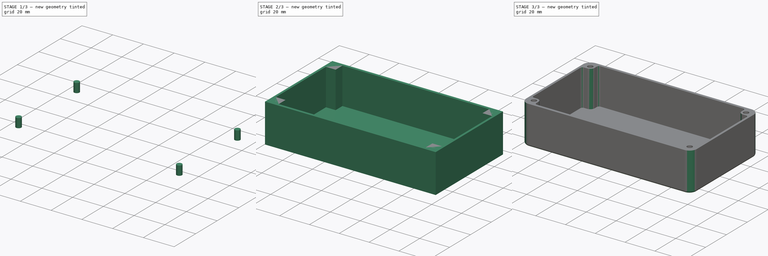
[diagram: build sequence overview — one tinted view per stage of 3, left to right]
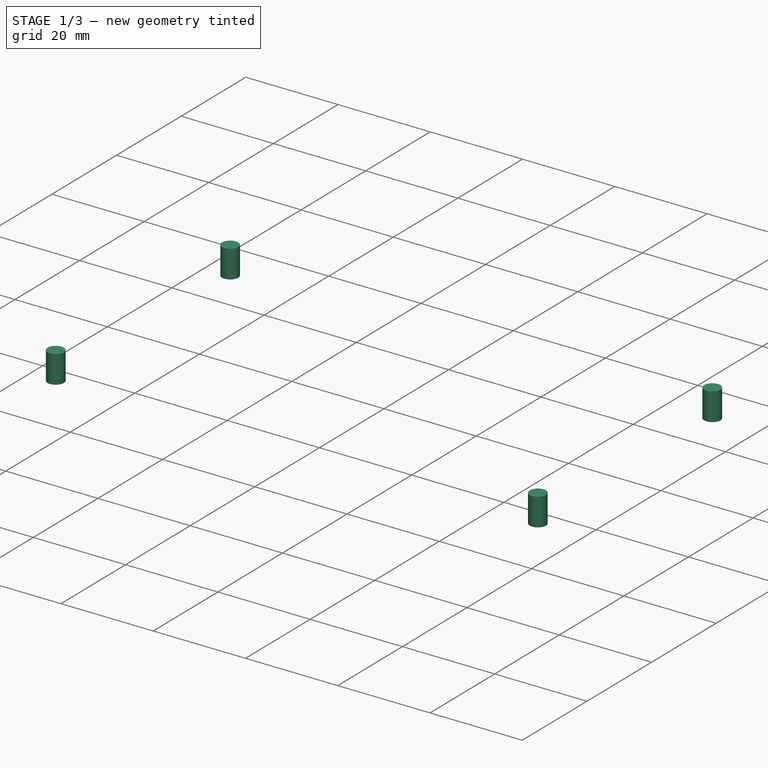
[diagram: stage 1 of 3 — iso view after this stage's code; geometry added in this stage tinted green]
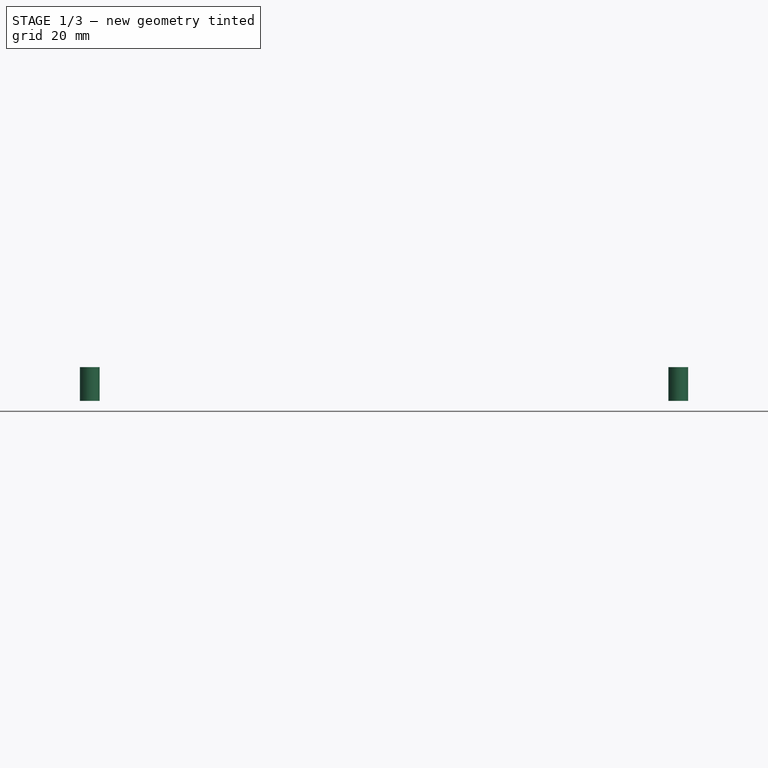
[diagram: stage 1 of 3 — front view after this stage's code; geometry added in this stage tinted green]
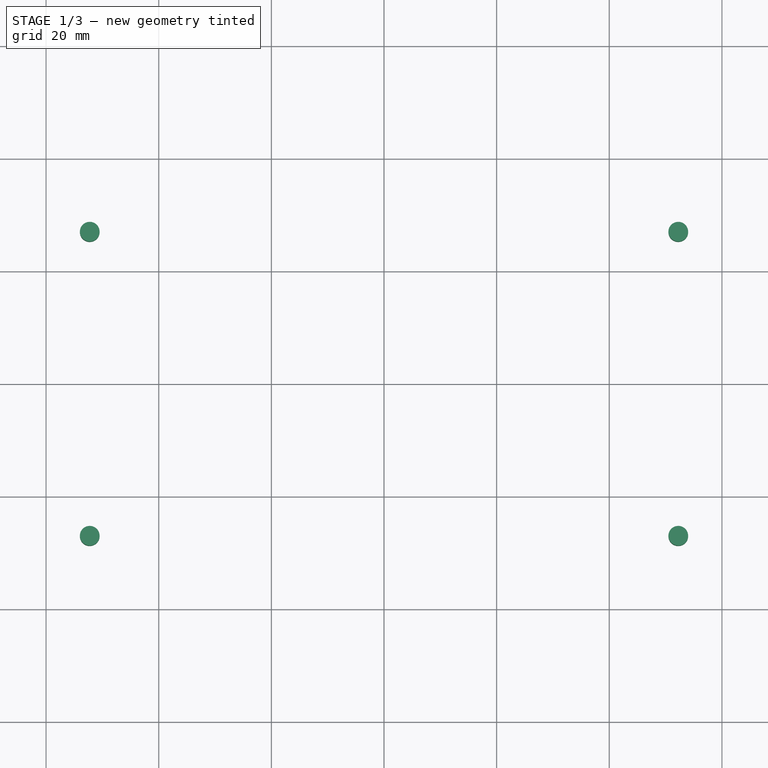
[diagram: stage 1 of 3 — top view after this stage's code; geometry added in this stage tinted green]
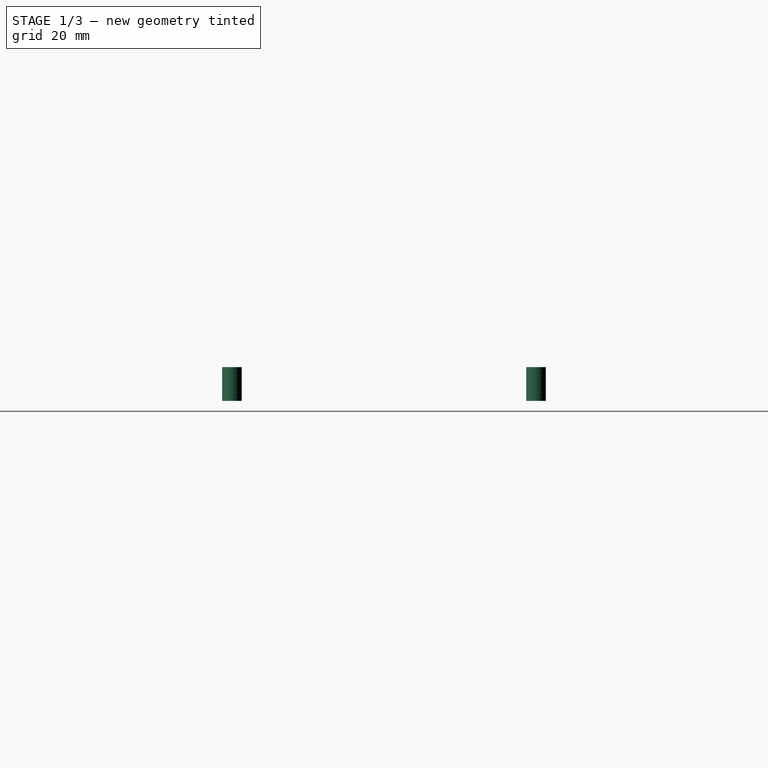
[diagram: stage 1 of 3 — right view after this stage's code; geometry added in this stage tinted green]
FCSTD DOCUMENT  (FreeCAD 0.15R4671 (Git))
Label: Hammond 1550B
License: All rights reserved
LicenseURL: http://en.wikipedia.org/wiki/All_rights_reserved
objects: Part::Box×1, Sketcher::SketchObject×1, PartDesign::Pocket×1, Part::Cylinder×1, Part::FeaturePython×1, Part::Cut×1, Part::Fillet×1
note: 8 computed .brp shape members not serialized (recipe doc carries the construction recipe); baked Part::Feature solids carry a one-line shape summary decoded from their .brp

FEATURE [Part::Cylinder] Cylinder
  Angle = 360
  Height = 6
  Placement = pos=(-52.25,27,20) rot=(0,0,1;0rad)
  Radius = 1.75
FEATURE [Part::FeaturePython] Array  # Draft array (typed FeaturePython)
  Angle = 360
  ArrayType = 0
  Axis = (0,0,1)
  Base = -> Cylinder
  Center = (0,0,0)
  Fuse = false
  IntervalAxis = (0,0,0)
  IntervalX = (104.5,0,0)
  IntervalY = (0,-54,0)
  IntervalZ = (0,0,0)
  NumberPolar = 1
  NumberX = 2
  NumberY = 2
  NumberZ = 1
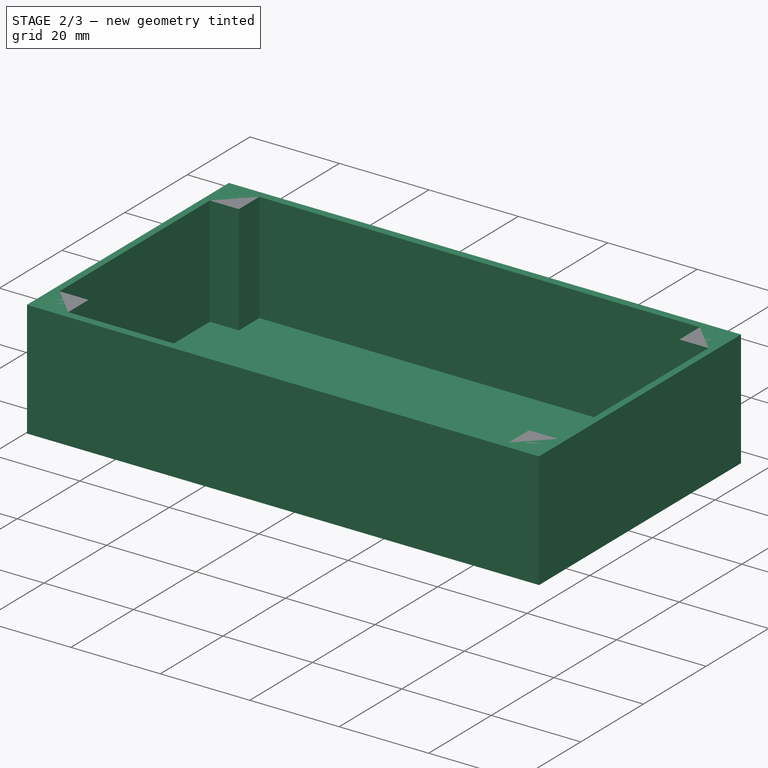
[diagram: stage 2 of 3 — iso view after this stage's code; geometry added in this stage tinted green]
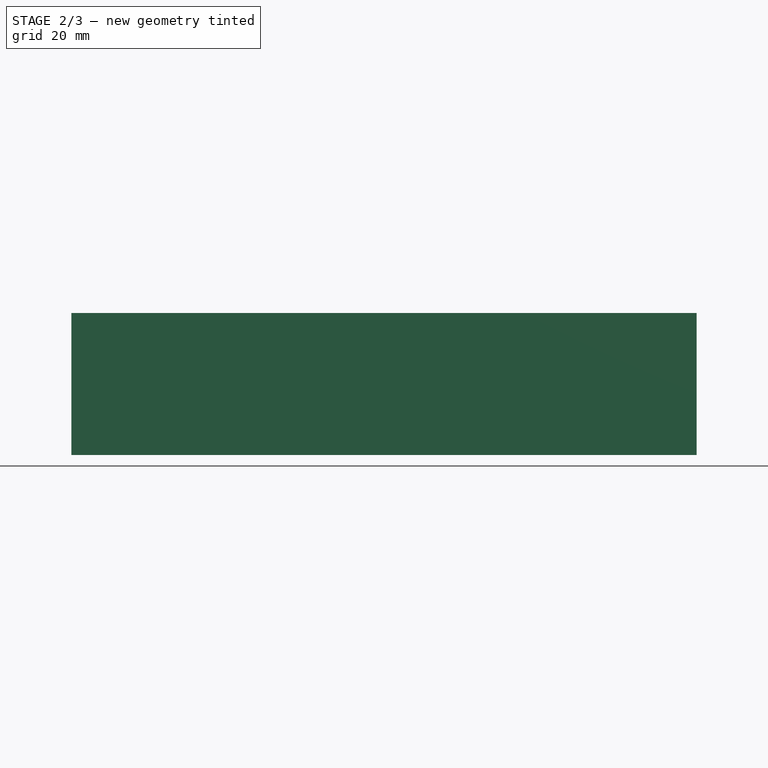
[diagram: stage 2 of 3 — front view after this stage's code; geometry added in this stage tinted green]
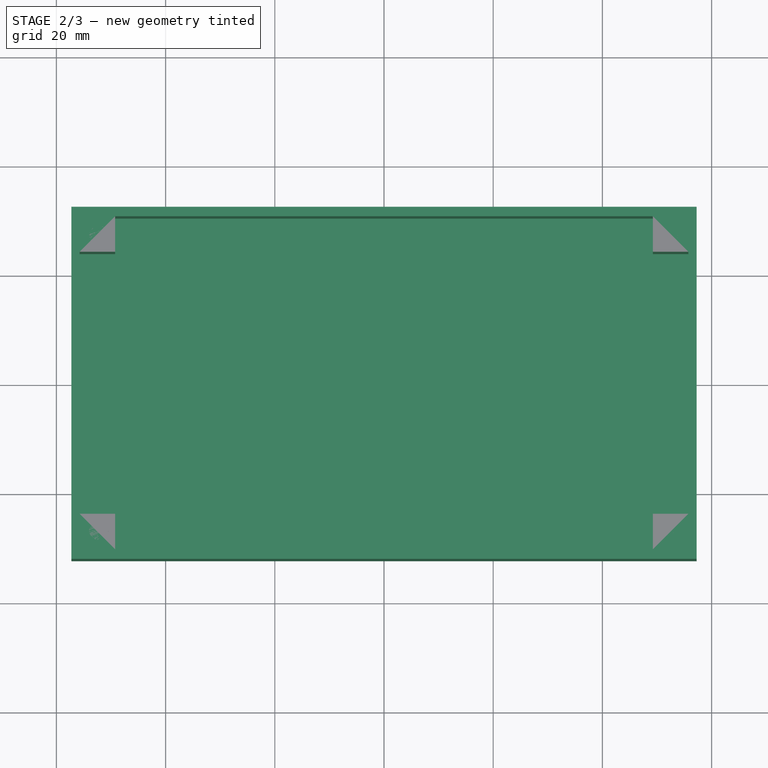
[diagram: stage 2 of 3 — top view after this stage's code; geometry added in this stage tinted green]
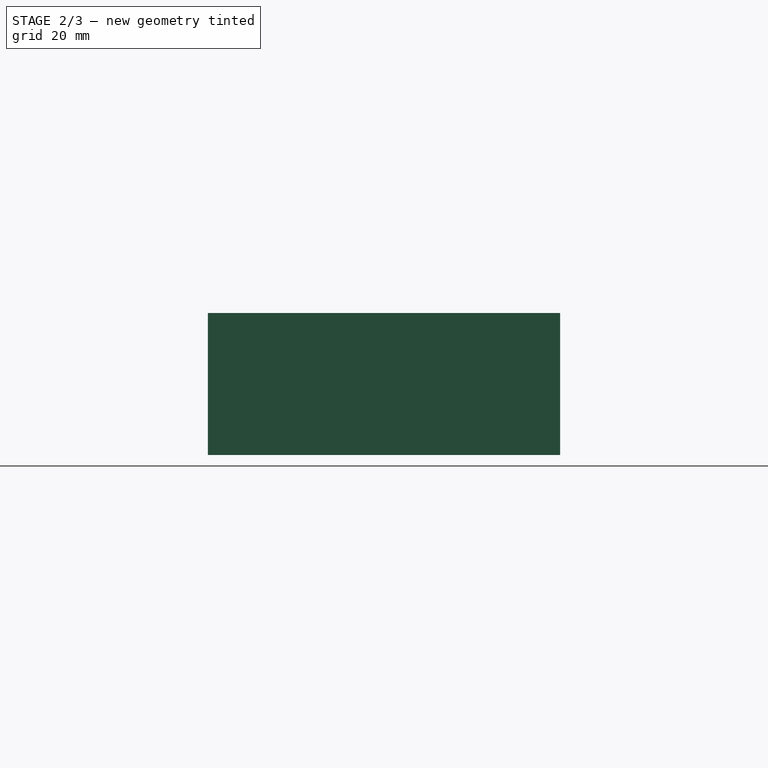
[diagram: stage 2 of 3 — right view after this stage's code; geometry added in this stage tinted green]
FEATURE [Part::Box] Box  label="Cube"
  Height = 26
  Length = 114.5
  Placement = pos=(-57.25,-32.25,0) rot=(0,0,1;0rad)
  Width = 64.5
FEATURE [Sketcher::SketchObject] Sketch
  ExternalGeometry = -> [Box]
  Placement = pos=(-57.25,-32.25,26) rot=(0,0,1;0rad)
  Support = -> Box [Face6]
  sketch-geometry (14):
    g0: LineSegment StartX=1.5 StartY=56.25 StartZ=0 EndX=8 EndY=56.25 EndZ=0
    g1: LineSegment StartX=8 StartY=56.25 StartZ=0 EndX=8 EndY=62.75 EndZ=0
    g2: LineSegment StartX=8 StartY=62.75 StartZ=0 EndX=106.5 EndY=62.75 EndZ=0
    g3: LineSegment StartX=106.5 StartY=62.75 StartZ=0 EndX=106.5 EndY=56.25 EndZ=0
    g4: LineSegment StartX=106.5 StartY=56.25 StartZ=0 EndX=113 EndY=56.25 EndZ=0
    g5: LineSegment StartX=113 StartY=56.25 StartZ=0 EndX=113 EndY=8.25 EndZ=0
    g6: LineSegment StartX=113 StartY=8.25 StartZ=0 EndX=106.5 EndY=8.25 EndZ=0
    g7: LineSegment StartX=106.5 StartY=8.25 StartZ=0 EndX=106.5 EndY=1.75 EndZ=0
    g8: LineSegment StartX=106.5 StartY=1.75 StartZ=0 EndX=8 EndY=1.75 EndZ=0
    g9: LineSegment StartX=8 StartY=1.75 StartZ=0 EndX=8 EndY=8.25 EndZ=0
    g10: LineSegment StartX=8 StartY=8.25 StartZ=0 EndX=1.5 EndY=8.25 EndZ=0
    g11: LineSegment StartX=1.5 StartY=8.25 StartZ=0 EndX=1.5 EndY=56.25 EndZ=0
    g12: LineSegment [constr] StartX=0 StartY=32.25 StartZ=0 EndX=114.5 EndY=32.25 EndZ=0
    g13: LineSegment [constr] StartX=57.25 StartY=64.5 StartZ=0 EndX=57.25 EndY=0 EndZ=0
  constraints (39):
    c: Coincident(g0,g1)
    c: Coincident(g1,g2)
    c: Horizontal(g2)
    c: Coincident(g2,g3)
    c: Vertical(g3)
    c: Coincident(g3,g4)
    c: Coincident(g4,g5)
    c: Vertical(g5)
    c: Coincident(g5,g6)
    c: Coincident(g6,g7)
    c: Coincident(g7,g8)
    c: Horizontal(g8)
    c: Coincident(g8,g9)
    c: Coincident(g9,g10)
    c: Horizontal(g10)
    c: Coincident(g10,g11)
    c: Coincident(g11,g0)
    c: Vertical(g11)
    c: Vertical(g1)
    c: Vertical(g7)
    c: Vertical(g9)
    c: Horizontal(g6)
    c: Horizontal(g4)
    c: Horizontal(g0)
    c: PointOnObject(g12,g-5)
    c: PointOnObject(g12,g-3)
    c: Symmetric(g-4,g-6,g12)
    c: PointOnObject(g13,g-6)
    c: PointOnObject(g13,g-4)
    c: Symmetric(g-4,g-5,g13)
    c: Symmetric(g0,g9,g12)
    c: Symmetric(g3,g6,g12)
    c: Symmetric(g3,g0,g13)
    c: DistanceY(g5) = -48
    c: DistanceX(g2) = 98.5
    c: DistanceX(g0,g4) = 111.5
    c: Symmetric(g0,g4,g13)
    c: DistanceY(g2,g7) = -61
    c: Symmetric(g7,g2,g12)
FEATURE [PartDesign::Pocket] Pocket
  Length = 24.5
  Placement = pos=(-57.25,-32.25,0) rot=(0,0,1;0rad)
  Sketch = -> Sketch
  Type = 0
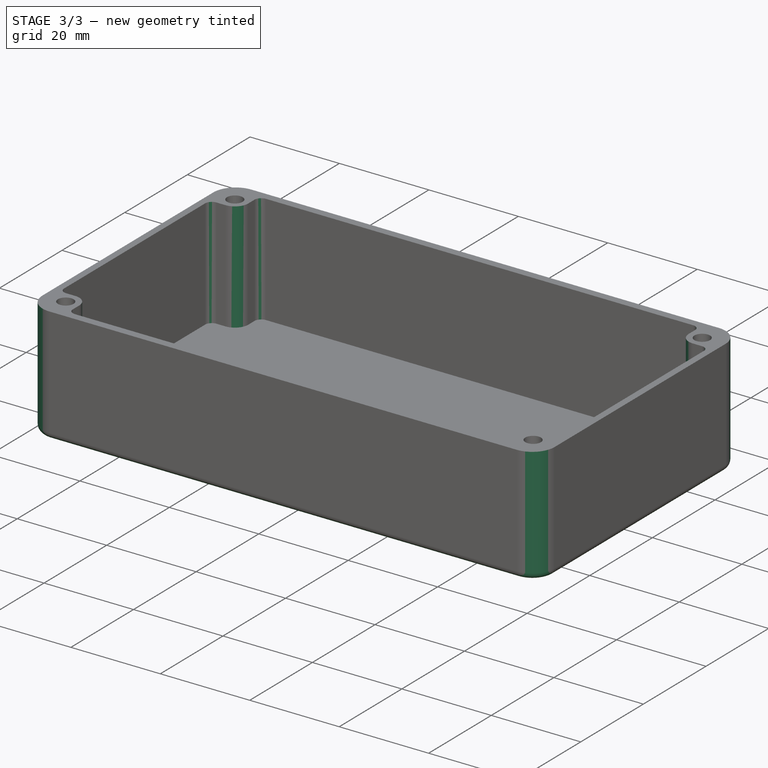
[diagram: stage 3 of 3 — iso view after this stage's code; geometry added in this stage tinted green]
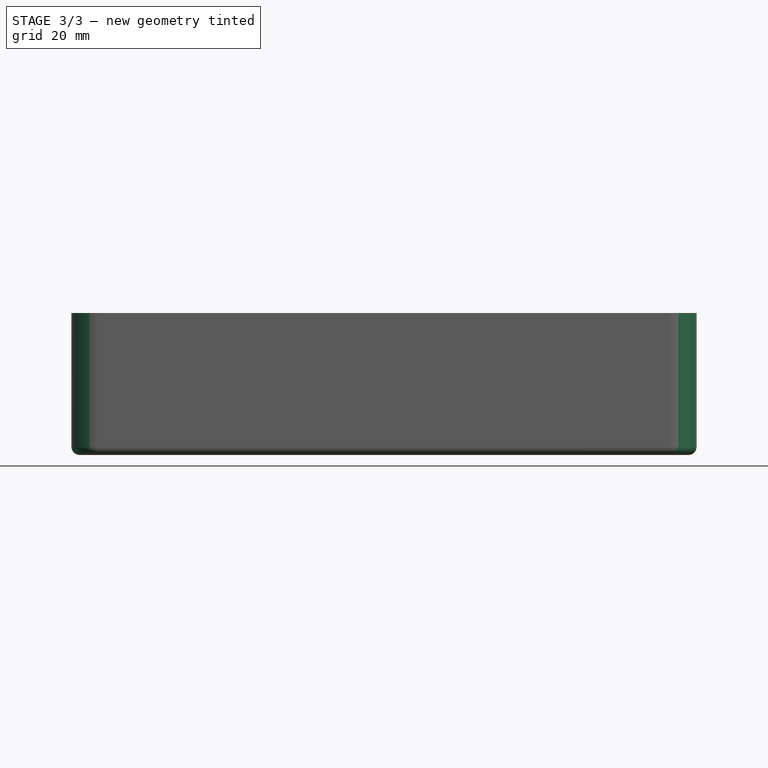
[diagram: stage 3 of 3 — front view after this stage's code; geometry added in this stage tinted green]
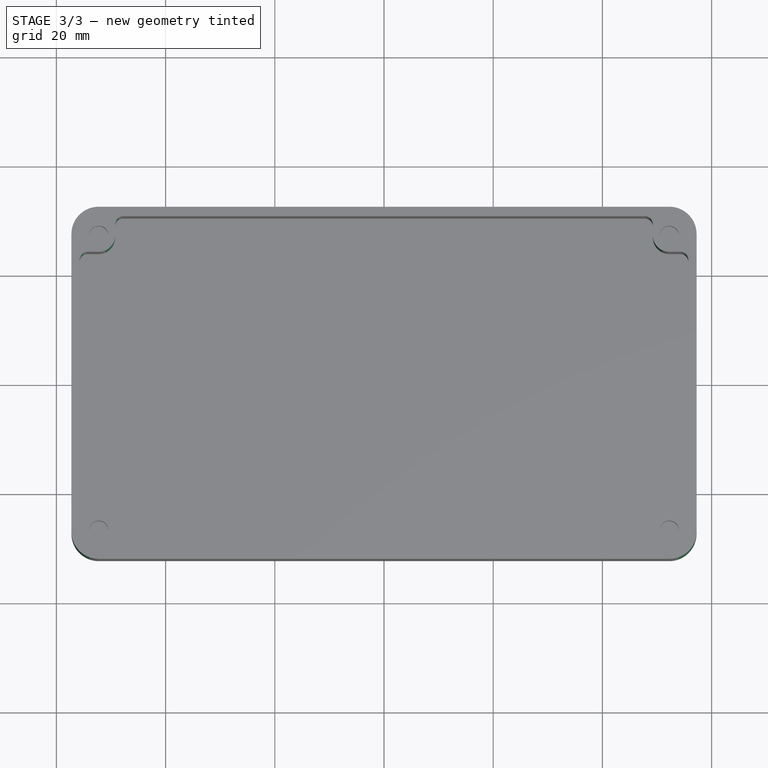
[diagram: stage 3 of 3 — top view after this stage's code; geometry added in this stage tinted green]
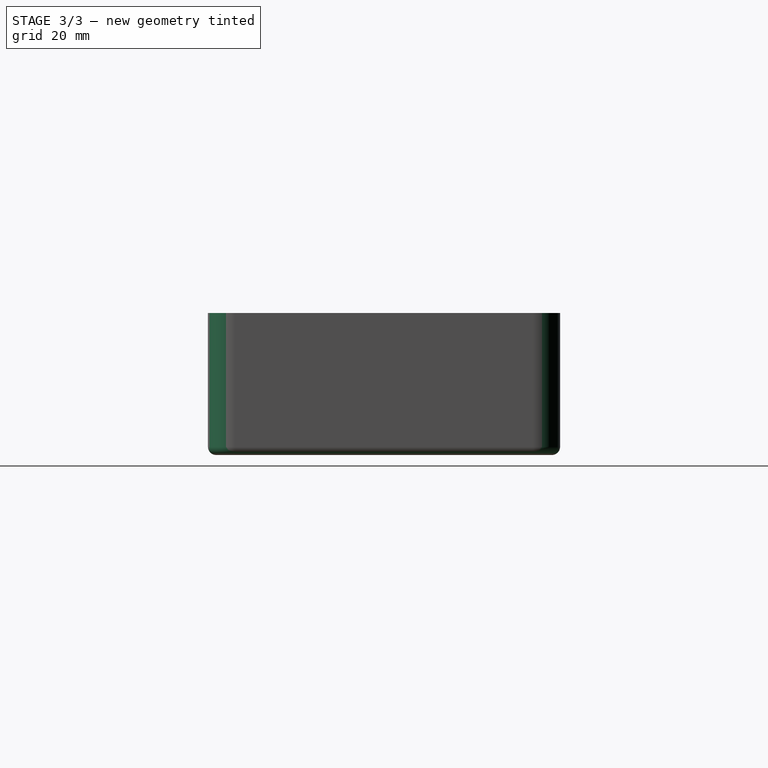
[diagram: stage 3 of 3 — right view after this stage's code; geometry added in this stage tinted green]
FEATURE [Part::Cut] Cut
  Base = -> Pocket
  Tool = -> Array
FEATURE [Part::Fillet] Fillet
  Base = -> Cut
  Edges = 20 edges: [Edge1 r=5,Edge3 r=5,Edge4 r=1.5,Edge5 r=1.5,Edge6 r=5,Edge26 r=1.5,Edge27 r=5,Edge28 r=1.5,Edge31 r=3,Edge33 r=1.5,Edge34 r=1.5,Edge37 r=1.5,Edge38 r=1.5,Edge41 r=3,Edge42 r=3,Edge45 r=1,Edge46 r=1.5,Edge49 r=1.5,Edge50 r=1.5,Edge53 r=3]
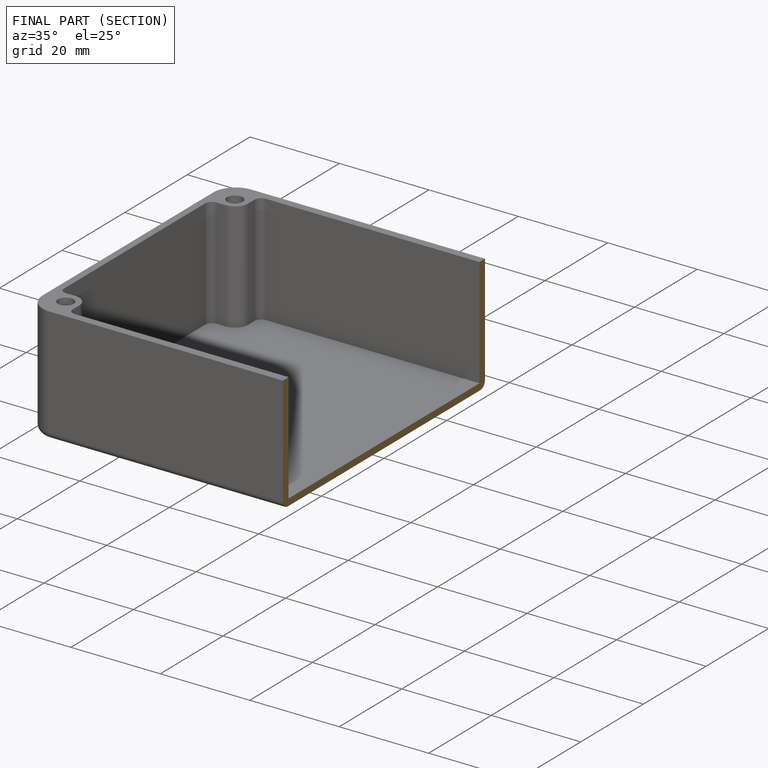
[diagram: finished part — half-section view (interior)]
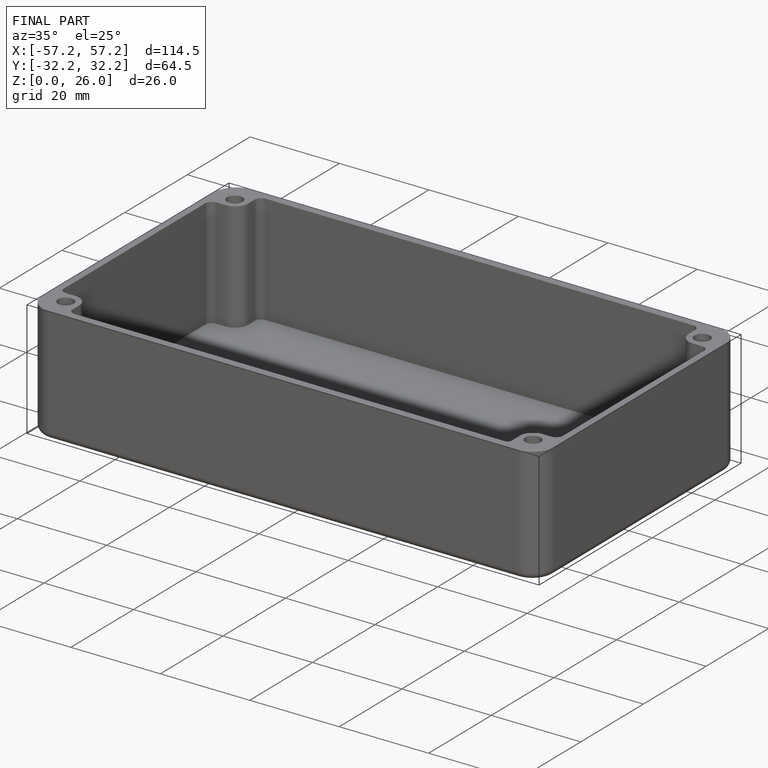
[diagram: finished part — iso view with bounding-box wireframe]
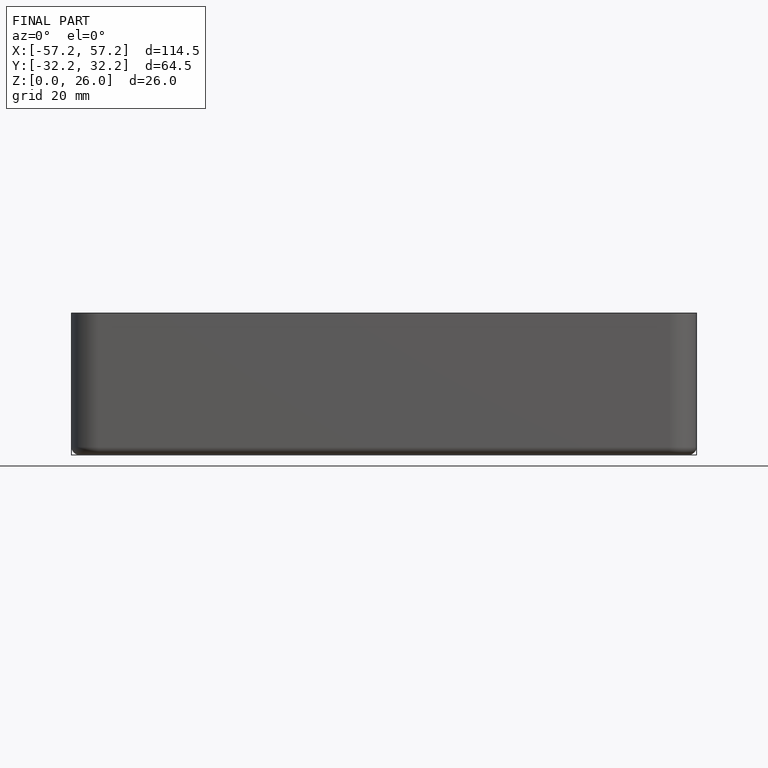
[diagram: finished part — front view with bounding-box wireframe]
